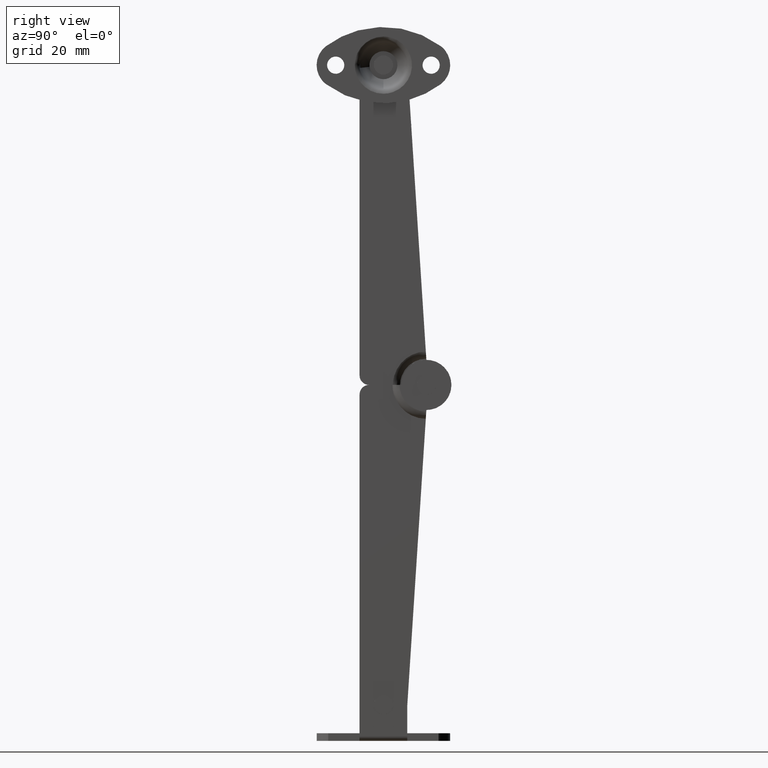
[diagram: clean part render]
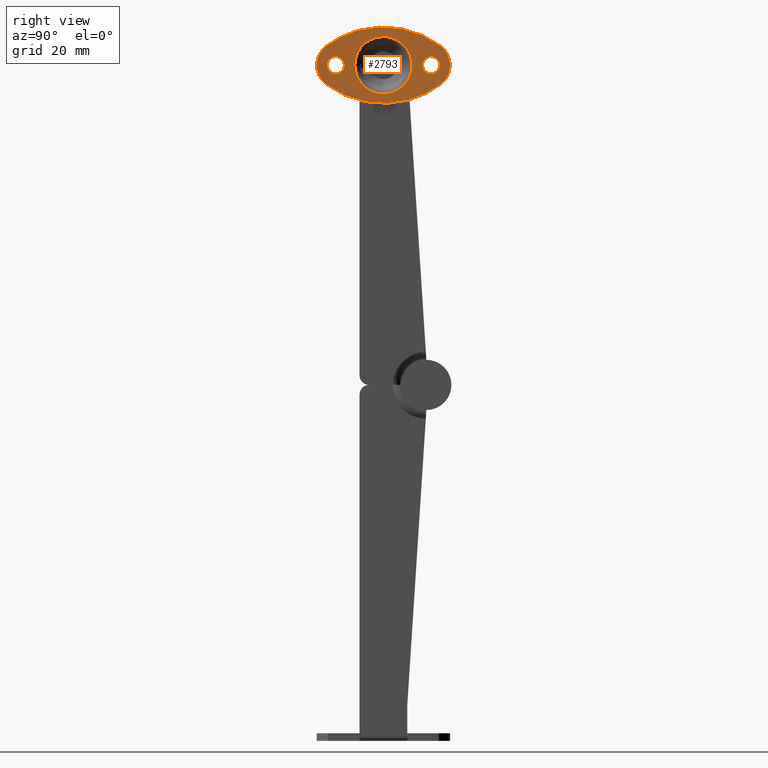
[diagram: same view with one face highlighted and labeled with its STEP entity id]
A machine part, right view. The second image highlights one B-rep face of the part: STEP entity #2793.
In plain terms, the highlighted face is a freeform B-spline surface patch.
Its self-contained STEP definition (entity closure, byte-faithful):
#1293=CARTESIAN_POINT('',(9.649994451055704,-2.239037304784775,65.694357113725545));
#1294=VERTEX_POINT('',#1293);
#1300=CARTESIAN_POINT('',(9.649994000000000,-1.0,65.200030000000012));
#1301=VERTEX_POINT('',#1300);
#1302=CARTESIAN_POINT('',(9.649994000000000,-1.0,65.200030000000012));
#1303=CARTESIAN_POINT('',(9.649994093302057,-1.256298084949666,65.199660623900812));
#1304=CARTESIAN_POINT('',(9.649994259002963,-1.711473907100474,65.299080119562205));
#1305=CARTESIAN_POINT('',(9.649994398451641,-2.094535352665974,65.557087586976436));
#1306=CARTESIAN_POINT('',(9.649994451055704,-2.239037304784775,65.694357113725545));
#1307=B_SPLINE_CURVE_WITH_KNOTS('',3,(#1302,#1303,#1304,#1305,#1306),.UNSPECIFIED.,.F.,.U.,(4,1,4),(0.000000084990069,0.768709457459307,1.366624335968727),.UNSPECIFIED.);
#1308=EDGE_CURVE('',#1301,#1294,#1307,.T.);
#1310=CARTESIAN_POINT('',(9.649994000000000,0.799999999996373,67.000026386603949));
#1311=VERTEX_POINT('',#1310);
#1312=CARTESIAN_POINT('',(9.649994000000000,0.799999999996373,67.000026386603949));
#1313=CARTESIAN_POINT('',(9.649994000000001,0.800414382369211,66.734875818377745));
#1314=CARTESIAN_POINT('',(9.649994000000021,0.703883556060165,66.308186642330710));
#1315=CARTESIAN_POINT('',(9.649993999999975,0.403928574066239,65.847343575582656));
#1316=CARTESIAN_POINT('',(9.649993999999998,0.103847748615253,65.561683830306535));
#1317=CARTESIAN_POINT('',(9.649994000000035,-0.337592026286505,65.289459060552844));
#1318=CARTESIAN_POINT('',(9.649993999999969,-0.734848716565953,65.199660955167360));
#1319=CARTESIAN_POINT('',(9.649994000000000,-1.0,65.200030000000012));
#1320=B_SPLINE_CURVE_WITH_KNOTS('',3,(#1312,#1313,#1314,#1315,#1316,#1317,#1318,#1319),.UNSPECIFIED.,.F.,.U.,(4,1,1,1,1,4),(0.000000345596898,0.795239765337936,1.281213680918837,1.634612673123135,2.032262881441498,2.827502303247388),.UNSPECIFIED.);
#1321=EDGE_CURVE('',#1311,#1301,#1320,.T.);
#1323=CARTESIAN_POINT('',(9.649994000000000,-1.0,68.800029999999992));
#1324=VERTEX_POINT('',#1323);
#1325=CARTESIAN_POINT('',(9.649994000000000,-1.0,68.800029999999992));
#1326=CARTESIAN_POINT('',(9.649994000000001,-0.734853882879192,68.800414078628833));
#1327=CARTESIAN_POINT('',(9.649994000000003,-0.249266821802632,68.690723412734101));
#1328=CARTESIAN_POINT('',(9.649994000000021,0.272700384364900,68.313433039890157));
#1329=CARTESIAN_POINT('',(9.649993999999984,0.555403358403742,67.931947877280010));
#1330=CARTESIAN_POINT('',(9.649993999999992,0.746267825684394,67.515360277613993));
#1331=CARTESIAN_POINT('',(9.649994000000087,0.800136375315735,67.206215401993603));
#1332=CARTESIAN_POINT('',(9.649994000000000,0.799999999996373,67.000026386603949));
#1333=B_SPLINE_CURVE_WITH_KNOTS('',3,(#1325,#1326,#1327,#1328,#1329,#1330,#1331,#1332),.UNSPECIFIED.,.F.,.U.,(4,1,1,1,1,4),(0.000000340656648,0.795240907083909,1.457882933283586,1.899716372774283,2.208993927122475,2.827506376488556),.UNSPECIFIED.);
#1334=EDGE_CURVE('',#1324,#1311,#1333,.T.);
#1336=CARTESIAN_POINT('',(9.649993554595177,-2.374401177565089,68.162366531939824));
#1337=VERTEX_POINT('',#1336);
#1338=CARTESIAN_POINT('',(9.649993554595177,-2.374401177565089,68.162366531939824));
#1339=CARTESIAN_POINT('',(9.649993612436207,-2.195919139567455,68.374236489262870));
#1340=CARTESIAN_POINT('',(9.649993751955897,-1.765398291226736,68.692110361589869));
#1341=CARTESIAN_POINT('',(9.649993920795298,-1.244404735133351,68.800331798949657));
#1342=CARTESIAN_POINT('',(9.649994000000000,-1.0,68.800029999999992));
#1343=B_SPLINE_CURVE_WITH_KNOTS('',3,(#1338,#1339,#1340,#1341,#1342),.UNSPECIFIED.,.F.,.U.,(4,1,4),(0.000000100120829,0.830796135116918,1.563891518724855),.UNSPECIFIED.);
#1344=EDGE_CURVE('',#1337,#1324,#1343,.T.);
#1379=CARTESIAN_POINT('',(9.649994000000000,-2.799999999996373,67.000033613396042));
#1380=VERTEX_POINT('',#1379);
#1381=CARTESIAN_POINT('',(9.649994000000000,-2.799999999996373,67.000033613396042));
#1382=CARTESIAN_POINT('',(9.649993914246483,-2.800208916386569,67.223817070721253));
#1383=CARTESIAN_POINT('',(9.649993752910925,-2.720363220080396,67.644839968122554));
#1384=CARTESIAN_POINT('',(9.649993612341973,-2.501992179032066,68.011670075757479));
#1385=CARTESIAN_POINT('',(9.649993554595177,-2.374401177565089,68.162366531939824));
#1386=B_SPLINE_CURVE_WITH_KNOTS('',3,(#1381,#1382,#1383,#1384,#1385),.UNSPECIFIED.,.F.,.U.,(4,1,4),(0.000000057585138,0.671274050167085,1.263612655268978),.UNSPECIFIED.);
#1387=EDGE_CURVE('',#1380,#1337,#1386,.T.);
#1389=CARTESIAN_POINT('',(9.649994451055704,-2.239037304784775,65.694357113725545));
#1390=CARTESIAN_POINT('',(9.649994396815503,-2.404758980099174,65.851367108114886));
#1391=CARTESIAN_POINT('',(9.649994257486902,-2.693087091308471,66.254683529306249));
#1392=CARTESIAN_POINT('',(9.649994089383382,-2.800373724412756,66.741294678245737));
#1393=CARTESIAN_POINT('',(9.649994000000000,-2.799999999996373,67.000033613396042));
#1394=B_SPLINE_CURVE_WITH_KNOTS('',3,(#1389,#1390,#1391,#1392,#1393),.UNSPECIFIED.,.F.,.U.,(4,1,4),(0.000000093078736,0.684812541278884,1.460882790438908),.UNSPECIFIED.);
#1395=EDGE_CURVE('',#1294,#1380,#1394,.T.);
#1485=CARTESIAN_POINT('',(9.649994451055704,17.760962695215230,65.694357113725545));
#1486=VERTEX_POINT('',#1485);
#1492=CARTESIAN_POINT('',(9.649994000000000,19.0,65.200030000000012));
#1493=VERTEX_POINT('',#1492);
#1494=CARTESIAN_POINT('',(9.649994000000000,19.0,65.200030000000012));
#1495=CARTESIAN_POINT('',(9.649994077743370,18.786441163693379,65.199865926290471));
#1496=CARTESIAN_POINT('',(9.649994243528212,18.331034854426299,65.282081073363784));
#1497=CARTESIAN_POINT('',(9.649994387210603,17.936343377775600,65.527558268005578));
#1498=CARTESIAN_POINT('',(9.649994451055704,17.760962695215230,65.694357113725545));
#1499=B_SPLINE_CURVE_WITH_KNOTS('',3,(#1494,#1495,#1496,#1497,#1498),.UNSPECIFIED.,.F.,.U.,(4,1,4),(0.000000084988176,0.640630727484481,1.366624335968762),.UNSPECIFIED.);
#1500=EDGE_CURVE('',#1493,#1486,#1499,.T.);
#1502=CARTESIAN_POINT('',(9.649994000000000,20.799999999996380,67.000026386603949));
#1503=VERTEX_POINT('',#1502);
#1504=CARTESIAN_POINT('',(9.649994000000000,20.799999999996380,67.000026386603949));
#1505=CARTESIAN_POINT('',(9.649993999999971,20.800401698574909,66.734890090380446));
#1506=CARTESIAN_POINT('',(9.649994000000056,20.697253330268321,66.278711407232024));
#1507=CARTESIAN_POINT('',(9.649993999999987,20.309117846460850,65.712956178023902));
#1508=CARTESIAN_POINT('',(9.649993999999957,19.750735939879629,65.309326788825501));
#1509=CARTESIAN_POINT('',(9.649994000000019,19.265144538212660,65.199646620830421));
#1510=CARTESIAN_POINT('',(9.649994000000000,19.0,65.200030000000012));
#1511=B_SPLINE_CURVE_WITH_KNOTS('',3,(#1504,#1505,#1506,#1507,#1508,#1509,#1510),.UNSPECIFIED.,.F.,.U.,(4,1,1,1,4),(0.000000345598685,0.795239765339662,1.369621816668202,2.032262881441540,2.827502303247411),.UNSPECIFIED.);
#1512=EDGE_CURVE('',#1503,#1493,#1511,.T.);
#1514=CARTESIAN_POINT('',(9.649994000000000,19.0,68.800029999999992));
#1515=VERTEX_POINT('',#1514);
#1516=CARTESIAN_POINT('',(9.649994000000000,19.0,68.800029999999992));
#1517=CARTESIAN_POINT('',(9.649994000000008,19.176702584370389,68.800063348140696));
#1518=CARTESIAN_POINT('',(9.649993999999978,19.574372426753769,68.741145547526799));
#1519=CARTESIAN_POINT('',(9.649994000000044,20.039623481263622,68.499757766064988));
#1520=CARTESIAN_POINT('',(9.649993999999991,20.382430089339501,68.173078120545583));
#1521=CARTESIAN_POINT('',(9.649993999999948,20.692882103396300,67.721161177934235));
#1522=CARTESIAN_POINT('',(9.649994000000074,20.800554131045391,67.294682843714853));
#1523=CARTESIAN_POINT('',(9.649994000000000,20.799999999996380,67.000026386603949));
#1524=B_SPLINE_CURVE_WITH_KNOTS('',3,(#1516,#1517,#1518,#1519,#1520,#1521,#1522,#1523),.UNSPECIFIED.,.F.,.U.,(4,1,1,1,1,4),(0.000000340657242,0.530151574952296,1.192891687106941,1.546291194766596,1.943904592462794,2.827506376488596),.UNSPECIFIED.);
#1525=EDGE_CURVE('',#1515,#1503,#1524,.T.);
#1527=CARTESIAN_POINT('',(9.649993554595177,17.625598822434910,68.162366531939810));
#1528=VERTEX_POINT('',#1527);
#1529=CARTESIAN_POINT('',(9.649993554595177,17.625598822434910,68.162366531939810));
#1530=CARTESIAN_POINT('',(9.649993605679878,17.783232693879071,68.349128830947876));
#1531=CARTESIAN_POINT('',(9.649993741449968,18.202183132001469,68.677188511200569));
#1532=CARTESIAN_POINT('',(9.649993910232753,18.723002080501630,68.800510863590148));
#1533=CARTESIAN_POINT('',(9.649994000000000,19.0,68.800029999999992));
#1534=B_SPLINE_CURVE_WITH_KNOTS('',3,(#1529,#1530,#1531,#1532,#1533),.UNSPECIFIED.,.F.,.U.,(4,1,4),(0.000000100121450,0.733095483797581,1.563891518724863),.UNSPECIFIED.);
#1535=EDGE_CURVE('',#1528,#1515,#1534,.T.);
#1570=CARTESIAN_POINT('',(9.649994000000000,17.200000000003630,67.000033613396042));
#1571=VERTEX_POINT('',#1570);
#1572=CARTESIAN_POINT('',(9.649994000000000,17.200000000003630,67.000033613396042));
#1573=CARTESIAN_POINT('',(9.649993924334217,17.199874407678081,67.197491944065362));
#1574=CARTESIAN_POINT('',(9.649993762970118,17.270054076239781,67.618589454449875));
#1575=CARTESIAN_POINT('',(9.649993620018332,17.480916593404501,67.991637789154623));
#1576=CARTESIAN_POINT('',(9.649993554595177,17.625598822434910,68.162366531939810));
#1577=B_SPLINE_CURVE_WITH_KNOTS('',3,(#1572,#1573,#1574,#1575,#1576),.UNSPECIFIED.,.F.,.U.,(4,1,4),(0.000000057587238,0.592338662387954,1.263612655268946),.UNSPECIFIED.);
#1578=EDGE_CURVE('',#1571,#1528,#1577,.T.);
#1580=CARTESIAN_POINT('',(9.649994451055704,17.760962695215230,65.694357113725545));
#1581=CARTESIAN_POINT('',(9.649994396821738,17.595215313404729,65.851349073716094));
#1582=CARTESIAN_POINT('',(9.649994257477070,17.306956610303541,66.254711894712671));
#1583=CARTESIAN_POINT('',(9.649994089386851,17.199609116564311,66.741284677093475));
#1584=CARTESIAN_POINT('',(9.649994000000000,17.200000000003630,67.000033613396042));
#1585=B_SPLINE_CURVE_WITH_KNOTS('',3,(#1580,#1581,#1582,#1583,#1584),.UNSPECIFIED.,.F.,.U.,(4,1,4),(0.000000093078407,0.684812541279019,1.460882790438911),.UNSPECIFIED.);
#1586=EDGE_CURVE('',#1486,#1571,#1585,.T.);
#1861=CARTESIAN_POINT('',(9.649994000000108,3.136375976985022,68.272075974731393));
#1862=VERTEX_POINT('',#1861);
#1872=CARTESIAN_POINT('',(9.649994000000110,9.0,61.000014362757327));
#1873=VERTEX_POINT('',#1872);
#1874=CARTESIAN_POINT('',(9.649994000000110,9.0,61.000014362757327));
#1875=CARTESIAN_POINT('',(9.649994000000101,8.609666033851966,60.999963915993057));
#1876=CARTESIAN_POINT('',(9.649994000000129,7.856898252964660,61.073774177375050));
#1877=CARTESIAN_POINT('',(9.649994000000104,6.567431565047627,61.452338306088663));
#1878=CARTESIAN_POINT('',(9.649994000000108,5.322233093092903,62.170007067396547));
#1879=CARTESIAN_POINT('',(9.649994000000113,4.193099609499307,63.304278319418842));
#1880=CARTESIAN_POINT('',(9.649994000000108,3.422323229111600,64.613065093003883));
#1881=CARTESIAN_POINT('',(9.649994000000111,2.942748407027567,66.317350125228558));
#1882=CARTESIAN_POINT('',(9.649994000000110,2.982083396451556,67.563674280196381));
#1883=CARTESIAN_POINT('',(9.649994000000108,3.136375976985022,68.272075974731393));
#1884=B_SPLINE_CURVE_WITH_KNOTS('',3,(#1874,#1875,#1876,#1877,#1878,#1879,#1880,#1881,#1882,#1883),.UNSPECIFIED.,.F.,.U.,(4,1,1,1,1,1,1,4),(0.000000245089083,1.171003277671836,2.258433945535783,4.015008304481801,5.436919954071710,7.026219321892260,8.531885843549242,10.706662360019990),.UNSPECIFIED.);
#1885=EDGE_CURVE('',#1873,#1862,#1884,.T.);
#1887=CARTESIAN_POINT('',(9.649994000000078,10.605318162429359,72.781305234925838));
#1888=VERTEX_POINT('',#1887);
#1889=CARTESIAN_POINT('',(9.649994000000078,10.605318162429359,72.781305234925838));
#1890=CARTESIAN_POINT('',(9.649994000000055,11.297080890939650,72.589859648466117));
#1891=CARTESIAN_POINT('',(9.649994000000179,12.404528278368611,72.053331649128211));
#1892=CARTESIAN_POINT('',(9.649993999999944,13.624697402842621,70.909657317831389));
#1893=CARTESIAN_POINT('',(9.649994000000325,14.332045750229319,69.835111346153681));
#1894=CARTESIAN_POINT('',(9.649993999999753,14.764208469638531,68.771669261998355));
#1895=CARTESIAN_POINT('',(9.649994000000190,14.977612297872950,67.781056901250778));
#1896=CARTESIAN_POINT('',(9.649994000000161,15.021125644364499,66.792165702876730));
#1897=CARTESIAN_POINT('',(9.649993999999943,14.904463686670191,65.763934735419980));
#1898=CARTESIAN_POINT('',(9.649994000000685,14.586090835608880,64.706292513996800));
#1899=CARTESIAN_POINT('',(9.649993999999259,14.057241659168310,63.711653234476287));
#1900=CARTESIAN_POINT('',(9.649994000000564,13.318290400114631,62.775172586309353));
#1901=CARTESIAN_POINT('',(9.649993999999881,12.403515575042130,62.003255487284349));
#1902=CARTESIAN_POINT('',(9.649994000000152,11.408322029173540,61.475369440308882));
#1903=CARTESIAN_POINT('',(9.649994000000238,10.300700564626670,61.101899437245443));
#1904=CARTESIAN_POINT('',(9.649993999999742,9.515834924212815,60.999859420742752));
#1905=CARTESIAN_POINT('',(9.649994000000110,9.0,61.000014362757327));
#1906=B_SPLINE_CURVE_WITH_KNOTS('',3,(#1889,#1890,#1891,#1892,#1893,#1894,#1895,#1896,#1897,#1898,#1899,#1900,#1901,#1902,#1903,#1904,#1905),.UNSPECIFIED.,.F.,.U.,(4,1,1,1,1,1,1,1,1,1,1,1,1,1,4),(0.000000489465464,2.153018411872363,3.633302781975148,4.978996204351661,5.988261890554455,7.064838755444603,8.006822377058905,8.948692278359964,10.159771989235090,11.303589983298190,12.312869004355740,13.725859519494570,14.869681853536109,15.677130941518140,17.224580091609841),.UNSPECIFIED.);
#1907=EDGE_CURVE('',#1888,#1873,#1906,.T.);
#1955=CARTESIAN_POINT('',(9.649994000000110,9.0,73.000045637242678));
#1956=VERTEX_POINT('',#1955);
#1957=CARTESIAN_POINT('',(9.649994000000110,9.0,73.000045637242678));
#1958=CARTESIAN_POINT('',(9.649994000000122,9.541714192960235,73.000137048333485));
#1959=CARTESIAN_POINT('',(9.649994000000103,10.083382077342559,72.926370396784577));
#1960=CARTESIAN_POINT('',(9.649994000000078,10.605318162429359,72.781305234925838));
#1961=B_SPLINE_CURVE_WITH_KNOTS('',3,(#1957,#1958,#1959,#1960),.UNSPECIFIED.,.F.,.U.,(4,4),(5.034593E-009,1.625134716293329),.UNSPECIFIED.);
#1962=EDGE_CURVE('',#1956,#1888,#1961,.T.);
#1964=CARTESIAN_POINT('',(9.649994000000108,3.136375976985022,68.272075974731393));
#1965=CARTESIAN_POINT('',(9.649994000000094,3.266451172408891,68.873174695616768));
#1966=CARTESIAN_POINT('',(9.649994000000124,3.621430631441156,69.794121433911656));
#1967=CARTESIAN_POINT('',(9.649994000000117,4.354684378896154,70.840286673246354));
#1968=CARTESIAN_POINT('',(9.649994000000119,5.143679458517179,71.645052012502973));
#1969=CARTESIAN_POINT('',(9.649994000000113,6.109929943415776,72.312304162901938));
#1970=CARTESIAN_POINT('',(9.649994000000104,7.452091081945932,72.859298907696115));
#1971=CARTESIAN_POINT('',(9.649994000000140,8.427415972008365,73.000274947265382));
#1972=CARTESIAN_POINT('',(9.649994000000110,9.0,73.000045637242678));
#1973=B_SPLINE_CURVE_WITH_KNOTS('',3,(#1964,#1965,#1966,#1967,#1968,#1969,#1970,#1971,#1972),.UNSPECIFIED.,.F.,.U.,(4,1,1,1,1,1,4),(0.000000123786517,1.844911224844770,2.926437859339236,3.817080720363979,5.216631494164000,6.425391302564513,8.143067522420745),.UNSPECIFIED.);
#1974=EDGE_CURVE('',#1862,#1956,#1973,.T.);
#2522=CARTESIAN_POINT('',(9.649994000000110,21.000004105534899,71.000018170845408));
#2523=VERTEX_POINT('',#2522);
#2524=CARTESIAN_POINT('',(9.649994000000110,-3.000003686655965,71.000018485002698));
#2525=VERTEX_POINT('',#2524);
#2526=CARTESIAN_POINT('',(9.649994000000110,21.000004105534899,71.000018170845408));
#2527=CARTESIAN_POINT('',(9.649994000000101,19.606001622478381,72.046139898922689));
#2528=CARTESIAN_POINT('',(9.649994000000135,17.308211481104710,73.338970790858212));
#2529=CARTESIAN_POINT('',(9.649994000000080,13.797254136939729,74.489477680095646));
#2530=CARTESIAN_POINT('',(9.649994000000120,10.417590043490030,75.073106162316336));
#2531=CARTESIAN_POINT('',(9.649994000000126,6.776470699495208,74.999944141021970));
#2532=CARTESIAN_POINT('',(9.649994000000083,3.488747073172148,74.294923879892082));
#2533=CARTESIAN_POINT('',(9.649994000000152,0.273770950415316,73.114453987845877));
#2534=CARTESIAN_POINT('',(9.649994000000051,-1.766816290358881,71.925368963532108));
#2535=CARTESIAN_POINT('',(9.649994000000110,-3.000003686655965,71.000018485002698));
#2536=B_SPLINE_CURVE_WITH_KNOTS('',3,(#2526,#2527,#2528,#2529,#2530,#2531,#2532,#2533,#2534,#2535),.UNSPECIFIED.,.F.,.U.,(4,1,1,1,1,1,1,4),(0.000000048449976,5.228463803631286,7.842709766473440,11.060233049703699,15.484287527659500,18.701835276592451,21.114989854946430,25.740166943320830),.UNSPECIFIED.);
#2537=EDGE_CURVE('',#2523,#2525,#2536,.T.);
#2583=CARTESIAN_POINT('',(9.649994000000110,21.000000295162049,63.000032721371902));
#2584=VERTEX_POINT('',#2583);
#2585=CARTESIAN_POINT('',(9.649994000000110,21.000000295162049,63.000032721371902));
#2586=CARTESIAN_POINT('',(9.649994000000092,21.251154371928251,63.188357881167718));
#2587=CARTESIAN_POINT('',(9.649994000000177,21.735772994078982,63.628852382171132));
#2588=CARTESIAN_POINT('',(9.649994000000023,22.270331946299990,64.350520155255978));
#2589=CARTESIAN_POINT('',(9.649994000000152,22.703483984053459,65.216780217272444));
#2590=CARTESIAN_POINT('',(9.649994000000115,22.941376703953871,66.059013162151430));
#2591=CARTESIAN_POINT('',(9.649994000000062,23.025423516828180,67.023830247763797));
#2592=CARTESIAN_POINT('',(9.649994000000223,22.943270519853080,67.966871295907879));
#2593=CARTESIAN_POINT('',(9.649993999999929,22.595018730077811,69.105092560633182));
#2594=CARTESIAN_POINT('',(9.649994000000230,21.943935458053559,70.165701571552589));
#2595=CARTESIAN_POINT('',(9.649994000000101,21.309104586485351,70.768234190709236));
#2596=CARTESIAN_POINT('',(9.649994000000110,21.000004105534899,71.000018170845408));
#2597=B_SPLINE_CURVE_WITH_KNOTS('',3,(#2585,#2586,#2587,#2588,#2589,#2590,#2591,#2592,#2593,#2594,#2595,#2596),.UNSPECIFIED.,.F.,.U.,(4,1,1,1,1,1,1,1,1,4),(0.000000283874277,0.941756870447453,1.956019835069806,2.680493443352812,3.839642157791069,4.564122549599736,5.578253375811129,6.664978479389026,8.113924067409426,9.273014752692442),.UNSPECIFIED.);
#2598=EDGE_CURVE('',#2584,#2523,#2597,.T.);
#2640=CARTESIAN_POINT('',(9.649994000000110,-3.000000015909705,63.000032511932403));
#2641=VERTEX_POINT('',#2640);
#2642=CARTESIAN_POINT('',(9.649994000000110,-3.000000015909705,63.000032511932403));
#2643=CARTESIAN_POINT('',(9.649994000000092,-1.605997751023824,61.953897591322423));
#2644=CARTESIAN_POINT('',(9.649994000000152,0.691800802045827,60.661138051571342));
#2645=CARTESIAN_POINT('',(9.649994000000058,4.458080552774334,59.426777289652222));
#2646=CARTESIAN_POINT('',(9.649994000000168,7.721724107517023,58.930694067893683));
#2647=CARTESIAN_POINT('',(9.649994000000095,11.082639255447409,59.032288215943893));
#2648=CARTESIAN_POINT('',(9.649994000000127,13.991012173575500,59.564494798660597));
#2649=CARTESIAN_POINT('',(9.649994000000097,17.369813477313471,60.690608280784318));
#2650=CARTESIAN_POINT('',(9.649994000000104,19.659603674296111,61.994164961118770));
#2651=CARTESIAN_POINT('',(9.649994000000110,21.000000295162049,63.000032721371902));
#2652=B_SPLINE_CURVE_WITH_KNOTS('',3,(#2642,#2643,#2644,#2645,#2646,#2647,#2648,#2649,#2650,#2651),.UNSPECIFIED.,.F.,.U.,(4,1,1,1,1,1,1,4),(0.000000048470827,5.228461091149526,7.842705697700037,11.864645613613570,15.082092491760569,17.897447020660032,20.712783386384249,25.740153589354961),.UNSPECIFIED.);
#2653=EDGE_CURVE('',#2641,#2584,#2652,.T.);
#2693=CARTESIAN_POINT('',(9.649994000000110,-3.000003686655965,71.000018485002698));
#2694=CARTESIAN_POINT('',(9.649994000000110,-3.270483891115501,70.797204984290957));
#2695=CARTESIAN_POINT('',(9.649994000000103,-3.787938948504215,70.319991943571111));
#2696=CARTESIAN_POINT('',(9.649994000000126,-4.377221507229255,69.487155831588737));
#2697=CARTESIAN_POINT('',(9.649994000000092,-4.805500277867499,68.509601035787156));
#2698=CARTESIAN_POINT('',(9.649994000000129,-5.045670775958975,67.342795342147653));
#2699=CARTESIAN_POINT('',(9.649994000000051,-4.980614782306598,66.222206106802787));
#2700=CARTESIAN_POINT('',(9.649994000000103,-4.684295033635258,65.173723576772019));
#2701=CARTESIAN_POINT('',(9.649994000000241,-4.149226587475864,64.083325777954272));
#2702=CARTESIAN_POINT('',(9.649993999999909,-3.483290317067980,63.361933687501129));
#2703=CARTESIAN_POINT('',(9.649994000000110,-3.000000015909705,63.000032511932403));
#2704=B_SPLINE_CURVE_WITH_KNOTS('',3,(#2693,#2694,#2695,#2696,#2697,#2698,#2699,#2700,#2701,#2702,#2703),.UNSPECIFIED.,.F.,.U.,(4,1,1,1,1,1,1,1,4),(0.000000283928129,1.014223614566017,2.100911204105307,3.042727969645987,4.201842481066900,5.650726894339682,6.375178836503205,7.461885251918522,9.273015369800733),.UNSPECIFIED.);
#2705=EDGE_CURVE('',#2525,#2641,#2704,.T.);
#2760=CARTESIAN_POINT('',(9.649994000000110,-6.398537637158274,75.799103255915028));
#2761=CARTESIAN_POINT('',(9.649994000000110,24.398603185556169,75.799103255915028));
#2762=CARTESIAN_POINT('',(9.649994000000110,-6.398537637158274,58.200816145868593));
#2763=CARTESIAN_POINT('',(9.649994000000110,24.398603185556169,58.200816145868593));
#2764=B_SPLINE_SURFACE_WITH_KNOTS('',1,1,((#2760,#2762),(#2761,#2763)),.UNSPECIFIED.,.F.,.F.,.U.,(2,2),(2,2),(0.0,30.797140822714439),(0.0,17.598287110046439),.UNSPECIFIED.);
#2765=ORIENTED_EDGE('',*,*,#2705,.T.);
#2766=ORIENTED_EDGE('',*,*,#2653,.T.);
#2767=ORIENTED_EDGE('',*,*,#2598,.T.);
#2768=ORIENTED_EDGE('',*,*,#2537,.T.);
#2769=EDGE_LOOP('',(#2765,#2766,#2767,#2768));
#2770=FACE_OUTER_BOUND('',#2769,.T.);
#2771=ORIENTED_EDGE('',*,*,#1885,.T.);
#2772=ORIENTED_EDGE('',*,*,#1974,.T.);
#2773=ORIENTED_EDGE('',*,*,#1962,.T.);
#2774=ORIENTED_EDGE('',*,*,#1907,.T.);
#2775=EDGE_LOOP('',(#2771,#2772,#2773,#2774));
#2776=FACE_BOUND('',#2775,.T.);
#2777=ORIENTED_EDGE('',*,*,#1525,.T.);
#2778=ORIENTED_EDGE('',*,*,#1512,.T.);
#2779=ORIENTED_EDGE('',*,*,#1500,.T.);
#2780=ORIENTED_EDGE('',*,*,#1586,.T.);
#2781=ORIENTED_EDGE('',*,*,#1578,.T.);
#2782=ORIENTED_EDGE('',*,*,#1535,.T.);
#2783=EDGE_LOOP('',(#2777,#2778,#2779,#2780,#2781,#2782));
#2784=FACE_BOUND('',#2783,.T.);
#2785=ORIENTED_EDGE('',*,*,#1334,.T.);
#2786=ORIENTED_EDGE('',*,*,#1321,.T.);
#2787=ORIENTED_EDGE('',*,*,#1308,.T.);
#2788=ORIENTED_EDGE('',*,*,#1395,.T.);
#2789=ORIENTED_EDGE('',*,*,#1387,.T.);
#2790=ORIENTED_EDGE('',*,*,#1344,.T.);
#2791=EDGE_LOOP('',(#2785,#2786,#2787,#2788,#2789,#2790));
#2792=FACE_BOUND('',#2791,.T.);
#2793=ADVANCED_FACE('',(#2770,#2776,#2784,#2792),#2764,.F.);